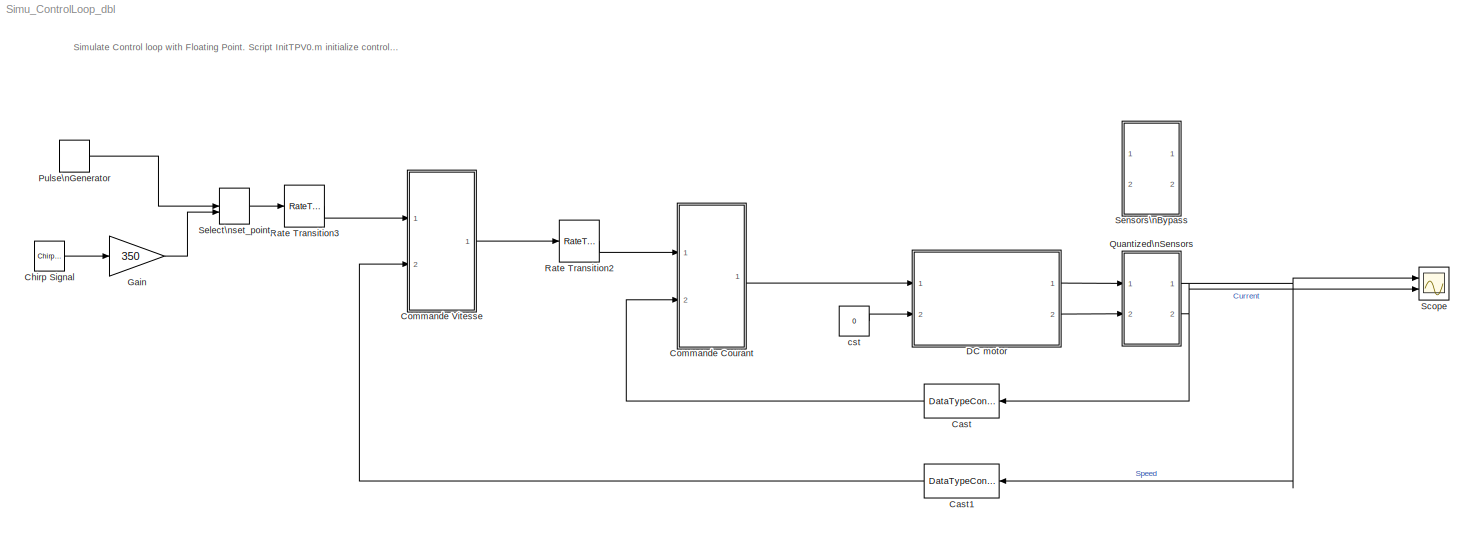
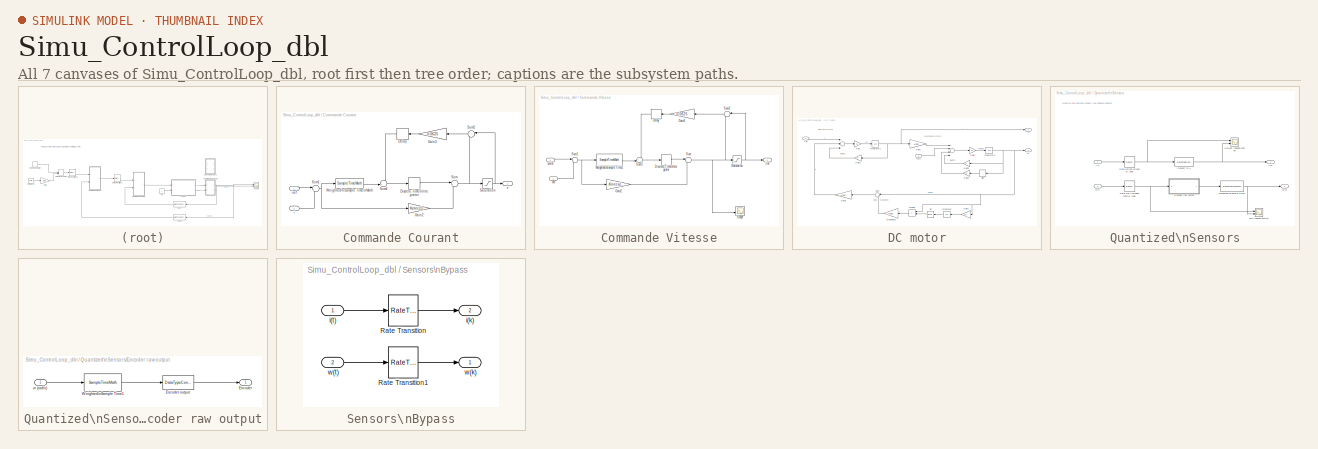
[diagram: thumbnail index - all 7 canvases of the model, root first then tree order]
MODEL Simu_ControlLoop_dbl
KIND model
CONFIG PreLoadFcn = InitTPV0;
BLOCK [DataTypeConversion] Cast
  OutDataTypeStr = double
  RndMeth = Floor
  SID = 700
  SaturateOnIntegerOverflow = off
BLOCK [DataTypeConversion] Cast1
  OutDataTypeStr = double
  RndMeth = Floor
  SID = 701
  SaturateOnIntegerOverflow = off
BLOCK [Reference] Chirp Signal  REF=simulink/Sources/Chirp Signal
  Ports = [0, 1]
  SID = 421
  SourceBlock = simulink/Sources/Chirp Signal
  SourceProductBaseCode = SL
  SourceProductName = Simulink
  SourceType = chirp
  T = 20
  VectorParams1D = on
  f1 = 0.1
  f2 = 5
BLOCK [SubSystem] Commande Courant
  Ports = [2, 1]
  RequestExecContextInheritance = off
  SID = 649
BLOCK [Delay] Commande Courant/Delay
  DelayLength = 1
  InitialCondition = 0
  InputPortMap = u0
  Ports = [1, 1]
  SID = 652
BLOCK [DiscreteIntegrator] Commande Courant/Discrete-Time\nIntegrator
  ICPrevOutput = DiscIntNeverNeededParam
  ICPrevScaledInput = DiscIntNeverNeededParam
  InitialConditionSetting = Auto
  IntegratorMethod = Accumulation: Backward Euler
  Ports = [1, 1]
  SID = 653
  SampleTime = -1
BLOCK [Gain] Commande Courant/Gain2
  Gain = Kelec(1)
  OutDataTypeStr = Inherit: Inherit via internal rule
  ParamDataTypeStr = Inherit: Inherit via internal rule
  SID = 655
  SaturateOnIntegerOverflow = off
BLOCK [Gain] Commande Courant/Gain3
  Gain = 0.0625
  OutDataTypeStr = Inherit: Inherit via internal rule
  ParamDataTypeStr = Inherit: Inherit via internal rule
  SID = 656
  SaturateOnIntegerOverflow = off
BLOCK [Saturate] Commande Courant/Saturation
  InputPortMap = u0
  LowerLimit = -Vmax
  Ports = [1, 1]
  SID = 657
  UpperLimit = Vmax
BLOCK [Sum] Commande Courant/Sum
  IconShape = round
  InputSameDT = off
  Inputs = |+-
  OutDataTypeStr = Inherit: Inherit via internal rule
  Ports = [2, 1]
  SID = 658
  SaturateOnIntegerOverflow = off
BLOCK [Sum] Commande Courant/Sum1
  IconShape = round
  InputSameDT = off
  Inputs = |+-
  OutDataTypeStr = Inherit: Inherit via internal rule
  Ports = [2, 1]
  SID = 659
  SaturateOnIntegerOverflow = off
BLOCK [Sum] Commande Courant/Sum2
  AccumDataTypeStr = Inherit: Same as first input
  IconShape = round
  InputSameDT = off
  Inputs = |-+
  OutDataTypeStr = Inherit: Same as accumulator
  Ports = [2, 1]
  SID = 660
  SaturateOnIntegerOverflow = off
BLOCK [Sum] Commande Courant/Sum4
  IconShape = round
  InputSameDT = off
  Inputs = -+|
  OutDataTypeStr = Inherit: Inherit via internal rule
  Ports = [2, 1]
  SID = 661
  SaturateOnIntegerOverflow = off
BLOCK [SampleTimeMath] Commande Courant/Weighted\nSample Time\nMath
  SID = 680
  TsampMathImp = Offline Scaling Adjustment
  TsampMathOp = *
  weightValue = Kelec(2)
BLOCK [Inport] Commande Courant/i
  IconDisplay = Port number
  Port = 2
  SID = 651
BLOCK [Inport] Commande Courant/iref
  IconDisplay = Port number
  SID = 650
BLOCK [Outport] Commande Courant/v
  IconDisplay = Port number
  SID = 662
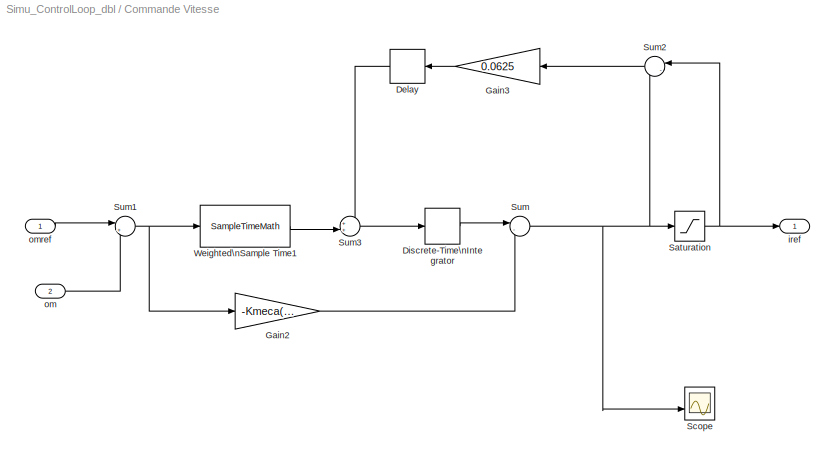
BLOCK [SubSystem] Commande Vitesse
  Ports = [2, 1]
  RequestExecContextInheritance = off
  SID = 634
BLOCK [Delay] Commande Vitesse/Delay
  DelayLength = 1
  InitialCondition = 0
  InputPortMap = u0
  Ports = [1, 1]
  SID = 637
BLOCK [DiscreteIntegrator] Commande Vitesse/Discrete-Time\nIntegrator
  ICPrevOutput = DiscIntNeverNeededParam
  ICPrevScaledInput = DiscIntNeverNeededParam
  InitialConditionSetting = Auto
  IntegratorMethod = Accumulation: Backward Euler
  Ports = [1, 1]
  SID = 638
  SampleTime = -1
BLOCK [Gain] Commande Vitesse/Gain2
  Gain = -Kmeca(1)
  OutDataTypeStr = Inherit: Inherit via internal rule
  ParamDataTypeStr = Inherit: Inherit via internal rule
  SID = 640
  SaturateOnIntegerOverflow = off
BLOCK [Gain] Commande Vitesse/Gain3
  Gain = 0.0625
  OutDataTypeStr = Inherit: Inherit via back propagation
  ParamDataTypeStr = Inherit: Inherit via internal rule
  SID = 641
  SaturateOnIntegerOverflow = off
BLOCK [Saturate] Commande Vitesse/Saturation
  InputPortMap = u0
  LowerLimit = -Imax
  Ports = [1, 1]
  SID = 642
  UpperLimit = Imax
BLOCK [Scope] Commande Vitesse/Scope
  Floating = off
  NumInputPorts = 2
  Ports = [2]
  SID = 643
  ScopeSpecificationString = Simulink.scopes.TimeScopeBlockCfg('CurrentConfiguration', extmgr.ConfigurationSet(extmgr.Configuration('Core','General UI',true),extmgr.Configuration('Core','Source UI',true),extmgr.Configuration('Sources','WiredSimulink',true,'DataLoggingVariableName','ScopeData4'),extmgr.Configuration('Visuals','Time Domain',true,'SerializedDisplays',{struct('MinYLimReal','-1.10037','MaxYLimReal','9.90335','YLab...<+1473ch>
BLOCK [Sum] Commande Vitesse/Sum
  IconShape = round
  InputSameDT = off
  Inputs = |--
  OutDataTypeStr = Inherit: Inherit via internal rule
  Ports = [2, 1]
  SID = 644
  SaturateOnIntegerOverflow = off
BLOCK [Sum] Commande Vitesse/Sum1
  IconShape = round
  InputSameDT = off
  Inputs = |+-
  OutDataTypeStr = Inherit: Inherit via internal rule
  Ports = [2, 1]
  SID = 645
  SaturateOnIntegerOverflow = off
BLOCK [Sum] Commande Vitesse/Sum2
  AccumDataTypeStr = Inherit: Same as first input
  IconShape = round
  InputSameDT = off
  Inputs = |-+
  OutDataTypeStr = Inherit: Same as accumulator
  Ports = [2, 1]
  SID = 646
  SaturateOnIntegerOverflow = off
BLOCK [Sum] Commande Vitesse/Sum3
  IconShape = round
  InputSameDT = off
  Inputs = ++|
  OutDataTypeStr = Inherit: Inherit via internal rule
  Ports = [2, 1]
  SID = 647
  SaturateOnIntegerOverflow = off
BLOCK [SampleTimeMath] Commande Vitesse/Weighted\nSample Time1
  SID = 679
  TsampMathOp = *
  weightValue = Kmeca(2)
BLOCK [Outport] Commande Vitesse/iref
  IconDisplay = Port number
  SID = 648
BLOCK [Inport] Commande Vitesse/om
  IconDisplay = Port number
  Port = 2
  SID = 636
BLOCK [Inport] Commande Vitesse/omref
  IconDisplay = Port number
  SID = 635
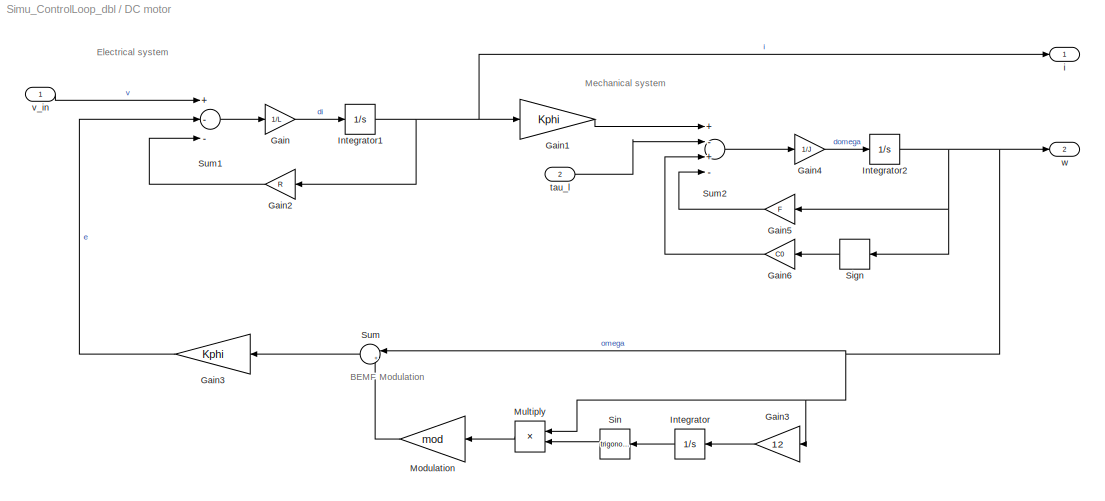
BLOCK [SubSystem] DC motor
  Ports = [2, 2]
  RequestExecContextInheritance = off
  SID = 814
BLOCK [Gain] DC motor/Gain
  Gain = 1/L
  OutDataTypeStr = Inherit: Inherit via internal rule
  ParamDataTypeStr = Inherit: Inherit via internal rule
  SID = 817
  SaturateOnIntegerOverflow = off
BLOCK [Gain] DC motor/Gain1
  Gain = Kphi
  OutDataTypeStr = Inherit: Inherit via internal rule
  ParamDataTypeStr = Inherit: Inherit via internal rule
  SID = 818
  SaturateOnIntegerOverflow = off
BLOCK [Gain] DC motor/Gain2
  Gain = R
  OutDataTypeStr = Inherit: Inherit via internal rule
  ParamDataTypeStr = Inherit: Inherit via internal rule
  SID = 819
  SaturateOnIntegerOverflow = off
BLOCK [Gain] DC motor/Gain3
  Gain = 12
  OutDataTypeStr = Inherit: Inherit via internal rule
  ParamDataTypeStr = Inherit: Inherit via internal rule
  SID = 820
  SaturateOnIntegerOverflow = off
BLOCK [Gain] DC motor/Gain3  
  Gain = Kphi
  OutDataTypeStr = Inherit: Inherit via internal rule
  ParamDataTypeStr = Inherit: Inherit via internal rule
  SID = 821
  SaturateOnIntegerOverflow = off
BLOCK [Gain] DC motor/Gain4
  Gain = 1/J
  OutDataTypeStr = Inherit: Inherit via internal rule
  ParamDataTypeStr = Inherit: Inherit via internal rule
  SID = 822
  SaturateOnIntegerOverflow = off
BLOCK [Gain] DC motor/Gain5
  Gain = F
  OutDataTypeStr = Inherit: Inherit via internal rule
  ParamDataTypeStr = Inherit: Inherit via internal rule
  SID = 823
  SaturateOnIntegerOverflow = off
BLOCK [Gain] DC motor/Gain6
  Gain = C0
  OutDataTypeStr = Inherit: Inherit via internal rule
  ParamDataTypeStr = Inherit: Inherit via internal rule
  SID = 824
  SaturateOnIntegerOverflow = off
BLOCK [Integrator] DC motor/Integrator
  Ports = [1, 1]
  SID = 825
  WrapState = on
BLOCK [Integrator] DC motor/Integrator1
  Ports = [1, 1]
  SID = 826
BLOCK [Integrator] DC motor/Integrator2
  Ports = [1, 1]
  SID = 827
BLOCK [Gain] DC motor/Modulation
  Gain = mod
  OutDataTypeStr = Inherit: Inherit via internal rule
  ParamDataTypeStr = Inherit: Inherit via internal rule
  SID = 828
  SaturateOnIntegerOverflow = off
BLOCK [Product] DC motor/Multiply
  InputSameDT = off
  OutDataTypeStr = Inherit: Inherit via internal rule
  Ports = [2, 1]
  RndMeth = Floor
  SID = 829
  SaturateOnIntegerOverflow = off
BLOCK [Signum] DC motor/Sign
  SID = 830
BLOCK [Trigonometry] DC motor/Sin
  Ports = [1, 1]
  SID = 831
BLOCK [Sum] DC motor/Sum
  IconShape = round
  InputSameDT = off
  Inputs = |++
  OutDataTypeStr = Inherit: Inherit via internal rule
  Ports = [2, 1]
  SID = 832
  SaturateOnIntegerOverflow = off
BLOCK [Sum] DC motor/Sum1
  InputSameDT = off
  Inputs = +--
  OutDataTypeStr = Inherit: Inherit via internal rule
  Ports = [3, 1]
  SID = 833
  SaturateOnIntegerOverflow = off
BLOCK [Sum] DC motor/Sum2
  InputSameDT = off
  Inputs = +-+-
  OutDataTypeStr = Inherit: Inherit via internal rule
  Ports = [4, 1]
  SID = 834
  SaturateOnIntegerOverflow = off
BLOCK [Outport] DC motor/i
  IconDisplay = Port number
  SID = 835
BLOCK [Inport] DC motor/tau_l
  IconDisplay = Port number
  Port = 2
  SID = 816
BLOCK [Inport] DC motor/v_in
  IconDisplay = Port number
  SID = 815
  SampleTime = 0
BLOCK [Outport] DC motor/w
  IconDisplay = Port number
  Port = 2
  SID = 836
BLOCK [Gain] Gain
  Gain = 350
  OutDataTypeStr = Inherit: Inherit via back propagation
  ParamDataTypeStr = Inherit: Inherit via internal rule
  SID = 422
  SaturateOnIntegerOverflow = off
BLOCK [DiscretePulseGenerator] Pulse\nGenerator
  Amplitude = 200
  PhaseDelay = 0.5
  Ports = [0, 1]
  PulseType = Time based
  PulseWidth = 50
  SID = 891
  SampleTime = -1
BLOCK [SubSystem] Quantized\nSensors
  Ports = [2, 2]
  RequestExecContextInheritance = off
  SID = 684
BLOCK [DataTypeConversion] Quantized\nSensors/Convert to A
  LockScale = on
  OutDataTypeStr = fixdt(1,16,4.4/32768,0)
  RndMeth = Floor
  SID = 687
BLOCK [Scope] Quantized\nSensors/Current \nquantization
  Floating = off
  NumInputPorts = 2
  Ports = [2]
  SID = 695
  ScopeSpecificationString = Simulink.scopes.TimeScopeBlockCfg('CurrentConfiguration', extmgr.ConfigurationSet(extmgr.Configuration('Core','General UI',true),extmgr.Configuration('Core','Source UI',true),extmgr.Configuration('Sources','WiredSimulink',true,'DataLoggingVariableName','ScopeData1'),extmgr.Configuration('Visuals','Time Domain',true,'SerializedDisplays',{struct('MinYLimReal','-4.53222','MaxYLimReal','18.09714','YLa...<+1513ch>
BLOCK [SubSystem] Quantized\nSensors/Encoder raw output
  Ports = [1, 1]
  RequestExecContextInheritance = off
  SID = 689
BLOCK [Outport] Quantized\nSensors/Encoder raw output/Encoder
  IconDisplay = Port number
  SID = 693
BLOCK [DataTypeConversion] Quantized\nSensors/Encoder raw output/Encoder output
  LockScale = on
  OutDataTypeStr = int16
  RndMeth = Floor
  SID = 691
BLOCK [SampleTimeMath] Quantized\nSensors/Encoder raw output/Weighted\nSample Time1
  SID = 884
  TsampMathOp = *
  weightValue = 1000/pi
BLOCK [Inport] Quantized\nSensors/Encoder raw output/w (rad//s)
  IconDisplay = Port number
  SID = 690
BLOCK [Scope] Quantized\nSensors/QEI\nquantization
  Floating = off
  NumInputPorts = 2
  Ports = [2]
  SID = 889
  ScopeSpecificationString = Simulink.scopes.TimeScopeBlockCfg('CurrentConfiguration', extmgr.ConfigurationSet(extmgr.Configuration('Core','General UI',true),extmgr.Configuration('Core','Source UI',true),extmgr.Configuration('Sources','WiredSimulink',true,'DataLoggingVariableName','ScopeData2'),extmgr.Configuration('Visuals','Time Domain',true,'SerializedDisplays',{struct('MinYLimReal','-26.77669','MaxYLimReal','240.99021','Y...<+1530ch>
BLOCK [RateTransition] Quantized\nSensors/Rate QEI\nSpeed control loop
  Deterministic = off
  OutPortSampleTime = .002
  SID = 697
BLOCK [RateTransition] Quantized\nSensors/Rate current\nControl loop
  Deterministic = off
  OutPortSampleTime = 50e-6
  SID = 696
BLOCK [SampleTimeMath] Quantized\nSensors/Weighted\nSample Time1
  SID = 886
  TsampMathImp = Offline Scaling Adjustment
  TsampMathOp = /
  weightValue = 1000/pi
BLOCK [Outport] Quantized\nSensors/i(k)
  IconDisplay = Port number
  Port = 2
  SID = 699
BLOCK [Inport] Quantized\nSensors/i(t)
  IconDisplay = Port number
  SID = 685
BLOCK [Outport] Quantized\nSensors/w(k)
  IconDisplay = Port number
  SID = 698
BLOCK [Inport] Quantized\nSensors/w(t)
  IconDisplay = Port number
  Port = 2
  SID = 686
BLOCK [RateTransition] Rate Transition2
  Deterministic = off
  SID = 519
BLOCK [RateTransition] Rate Transition3
  Deterministic = off
  SID = 578
BLOCK [Scope] Scope
  Floating = off
  NumInputPorts = 2
  Ports = [2]
  SID = 887
  ScopeSpecificationString = Simulink.scopes.TimeScopeBlockCfg('CurrentConfiguration', extmgr.ConfigurationSet(extmgr.Configuration('Core','General UI',true),extmgr.Configuration('Core','Source UI',true),extmgr.Configuration('Sources','WiredSimulink',true,'DataLoggingVariableName','ScopeData1'),extmgr.Configuration('Visuals','Time Domain',true,'SerializedDisplays',{struct('MinYLimReal','-540.35394','MaxYLimReal','464.95571','...<+2068ch>
BLOCK [ManualSwitch] Select\nset_point
  SID = 618
BLOCK [SubSystem] Sensors\nBypass
  Ports = [2, 2]
  RequestExecContextInheritance = off
  SID = 433
BLOCK [RateTransition] Sensors\nBypass/Rate Transition
  Deterministic = off
  OutPortSampleTime = 50e-6
  SID = 436
BLOCK [RateTransition] Sensors\nBypass/Rate Transition1
  Deterministic = off
  OutPortSampleTime = .002
  SID = 437
BLOCK [Outport] Sensors\nBypass/i(k)
  IconDisplay = Port number
  Port = 2
  SID = 438
BLOCK [Inport] Sensors\nBypass/i(t)
  IconDisplay = Port number
  SID = 434
BLOCK [Outport] Sensors\nBypass/w(k)
  IconDisplay = Port number
  SID = 439
BLOCK [Inport] Sensors\nBypass/w(t)
  IconDisplay = Port number
  Port = 2
  SID = 435
BLOCK [Constant] cst
  SID = 432
  Value = 0
ANNOTATION (root): \n \n Simulate Control loop with Floating Point. Script InitTPV0.m initialize control gains. \n \n Two sensor block are proposed to simulate or bypass sensor quantization. \n \n Sampling rate for Inner current feedback loop and outer speed feedback loop can be set independantly in the sensor block allowing to test impact of control loop rate on overall output. \n QEI peripheral will provide a high...<+86ch>
ANNOTATION DC motor: BEMF Modulation
ANNOTATION DC motor: Electrical system
ANNOTATION DC motor: Mechanical system
ANNOTATION Quantized\nSensors: \n \n Quantize and saturate sensor like onboard sensors \n \n Note QEI resolution vary with its sampling rate: \n the lower the sampling for QEI, the higher its resolution. \n \n Modify sampling rate (through the rate transition block) of inner and outer loop and see impact on simulation \n \n Default values: 50us for current control loop, 2ms for speed control loop
LINE Cast1:1 -> Commande Vitesse:2
LINE Cast:1 -> Commande Courant:2
LINE Chirp Signal:1 -> Gain:1
LINE Commande Courant/Delay:1 -> Commande Courant/Sum4:1
LINE Commande Courant/Discrete-Time\nIntegrator:1 -> Commande Courant/Sum:1
LINE Commande Courant/Gain2:1 -> Commande Courant/Sum:2
LINE Commande Courant/Gain3:1 -> Commande Courant/Delay:1
NET Commande Courant/Saturation:1 -> Commande Courant/Sum2:1, Commande Courant/v:1
NET Commande Courant/Sum1:1 -> Commande Courant/Gain2:1, Commande Courant/Weighted\nSample Time\nMath:1
LINE Commande Courant/Sum2:1 -> Commande Courant/Gain3:1
LINE Commande Courant/Sum4:1 -> Commande Courant/Discrete-Time\nIntegrator:1
NET Commande Courant/Sum:1 -> Commande Courant/Saturation:1, Commande Courant/Sum2:2
LINE Commande Courant/Weighted\nSample Time\nMath:1 -> Commande Courant/Sum4:2
LINE Commande Courant/i:1 -> Commande Courant/Sum1:2
LINE Commande Courant/iref:1 -> Commande Courant/Sum1:1
LINE Commande Courant:1 -> DC motor:1
LINE Commande Vitesse/Delay:1 -> Commande Vitesse/Sum3:1
LINE Commande Vitesse/Discrete-Time\nIntegrator:1 -> Commande Vitesse/Sum:1
LINE Commande Vitesse/Gain2:1 -> Commande Vitesse/Sum:2
LINE Commande Vitesse/Gain3:1 -> Commande Vitesse/Delay:1
NET Commande Vitesse/Saturation:1 -> Commande Vitesse/Sum2:1, Commande Vitesse/iref:1
NET Commande Vitesse/Sum1:1 -> Commande Vitesse/Gain2:1, Commande Vitesse/Weighted\nSample Time1:1
LINE Commande Vitesse/Sum2:1 -> Commande Vitesse/Gain3:1
LINE Commande Vitesse/Sum3:1 -> Commande Vitesse/Discrete-Time\nIntegrator:1
NET Commande Vitesse/Sum:1 -> Commande Vitesse/Saturation:1, Commande Vitesse/Scope:2, Commande Vitesse/Sum2:2
LINE Commande Vitesse/Weighted\nSample Time1:1 -> Commande Vitesse/Sum3:2
LINE Commande Vitesse/om:1 -> Commande Vitesse/Sum1:2
LINE Commande Vitesse/omref:1 -> Commande Vitesse/Sum1:1
LINE Commande Vitesse:1 -> Rate Transition2:1
LINE DC motor/Gain1:1 -> DC motor/Sum2:1
LINE DC motor/Gain2:1 -> DC motor/Sum1:3
LINE DC motor/Gain3  :1 -> DC motor/Sum1:2
LINE DC motor/Gain3:1 -> DC motor/Integrator:1
LINE DC motor/Gain4:1 -> DC motor/Integrator2:1
LINE DC motor/Gain5:1 -> DC motor/Sum2:4
LINE DC motor/Gain6:1 -> DC motor/Sum2:3
LINE DC motor/Gain:1 -> DC motor/Integrator1:1
NET DC motor/Integrator1:1 -> DC motor/Gain1:1, DC motor/Gain2:1, DC motor/i:1
NET DC motor/Integrator2:1 -> DC motor/Gain3:1, DC motor/Gain5:1, DC motor/Multiply:1, DC motor/Sign:1, DC motor/Sum:1, DC motor/w:1
LINE DC motor/Integrator:1 -> DC motor/Sin:1
LINE DC motor/Modulation:1 -> DC motor/Sum:2
LINE DC motor/Multiply:1 -> DC motor/Modulation:1
LINE DC motor/Sign:1 -> DC motor/Gain6:1
LINE DC motor/Sin:1 -> DC motor/Multiply:2
LINE DC motor/Sum1:1 -> DC motor/Gain:1
LINE DC motor/Sum2:1 -> DC motor/Gain4:1
LINE DC motor/Sum:1 -> DC motor/Gain3  :1
LINE DC motor/tau_l:1 -> DC motor/Sum2:2
LINE DC motor/v_in:1 -> DC motor/Sum1:1
LINE DC motor:1 -> Quantized\nSensors:1
LINE DC motor:2 -> Quantized\nSensors:2
LINE Gain:1 -> Select\nset_point:2
LINE Pulse\nGenerator:1 -> Select\nset_point:1
NET Quantized\nSensors/Convert to A:1 -> Quantized\nSensors/Current \nquantization:2, Quantized\nSensors/i(k):1
LINE Quantized\nSensors/Encoder raw output/Encoder output:1 -> Quantized\nSensors/Encoder raw output/Encoder:1
LINE Quantized\nSensors/Encoder raw output/Weighted\nSample Time1:1 -> Quantized\nSensors/Encoder raw output/Encoder output:1
LINE Quantized\nSensors/Encoder raw output/w (rad//s):1 -> Quantized\nSensors/Encoder raw output/Weighted\nSample Time1:1
LINE Quantized\nSensors/Encoder raw output:1 -> Quantized\nSensors/Weighted\nSample Time1:1
NET Quantized\nSensors/Rate QEI\nSpeed control loop:1 -> Quantized\nSensors/Encoder raw output:1, Quantized\nSensors/QEI\nquantization:1
NET Quantized\nSensors/Rate current\nControl loop:1 -> Quantized\nSensors/Convert to A:1, Quantized\nSensors/Current \nquantization:1
NET Quantized\nSensors/Weighted\nSample Time1:1 -> Quantized\nSensors/QEI\nquantization:2, Quantized\nSensors/w(k):1
LINE Quantized\nSensors/i(t):1 -> Quantized\nSensors/Rate current\nControl loop:1
LINE Quantized\nSensors/w(t):1 -> Quantized\nSensors/Rate QEI\nSpeed control loop:1
NET Quantized\nSensors:1 -> Cast1:1, Scope:1
NET Quantized\nSensors:2 -> Cast:1, Scope:2
LINE Rate Transition2:1 -> Commande Courant:1
LINE Rate Transition3:1 -> Commande Vitesse:1
LINE Select\nset_point:1 -> Rate Transition3:1
LINE Sensors\nBypass/Rate Transition1:1 -> Sensors\nBypass/w(k):1
LINE Sensors\nBypass/Rate Transition:1 -> Sensors\nBypass/i(k):1
LINE Sensors\nBypass/i(t):1 -> Sensors\nBypass/Rate Transition:1
LINE Sensors\nBypass/w(t):1 -> Sensors\nBypass/Rate Transition1:1
LINE cst:1 -> DC motor:2
note: NET lines group one-source signal fan-out (src -> all destinations, sorted); 1:1 wires keep LINE
